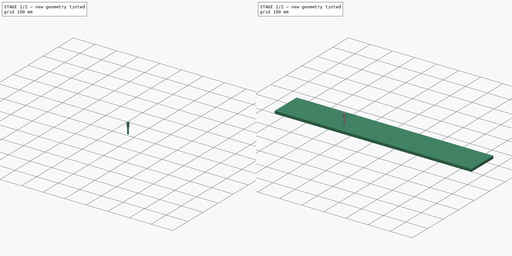
[diagram: build sequence overview — one tinted view per stage of 2, left to right]
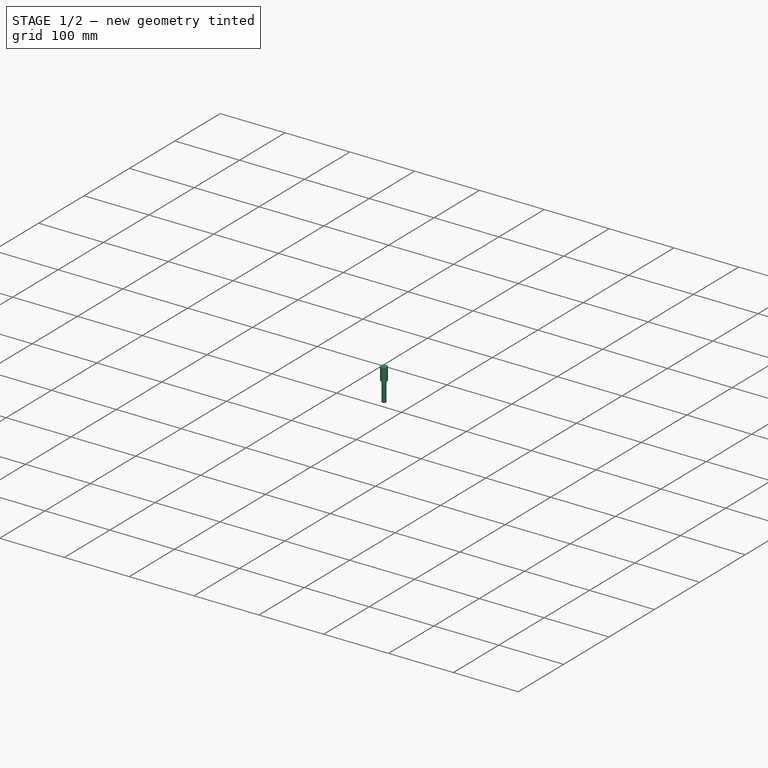
[diagram: stage 1 of 2 — iso view after this stage's code; geometry added in this stage tinted green]
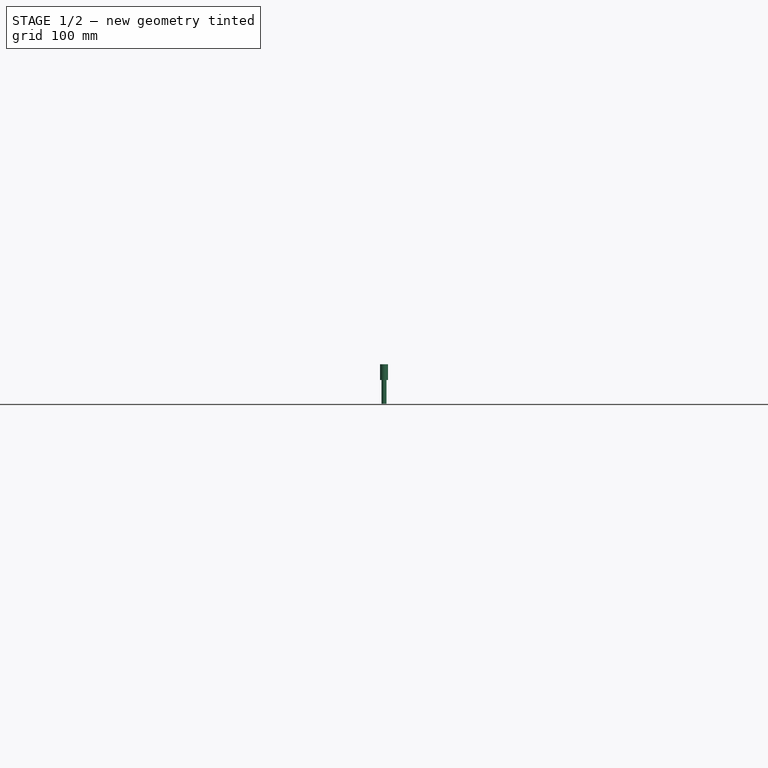
[diagram: stage 1 of 2 — front view after this stage's code; geometry added in this stage tinted green]
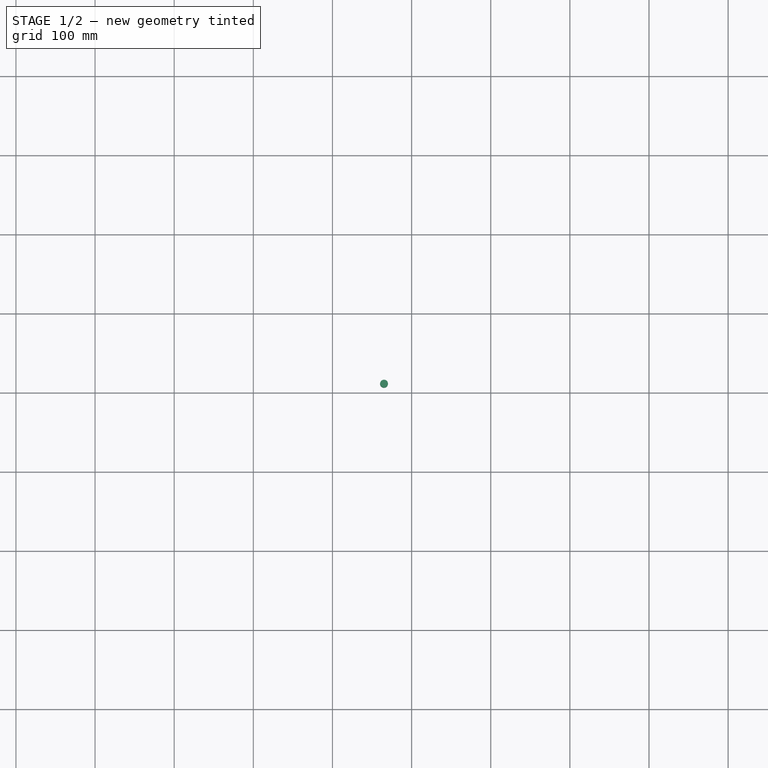
[diagram: stage 1 of 2 — top view after this stage's code; geometry added in this stage tinted green]
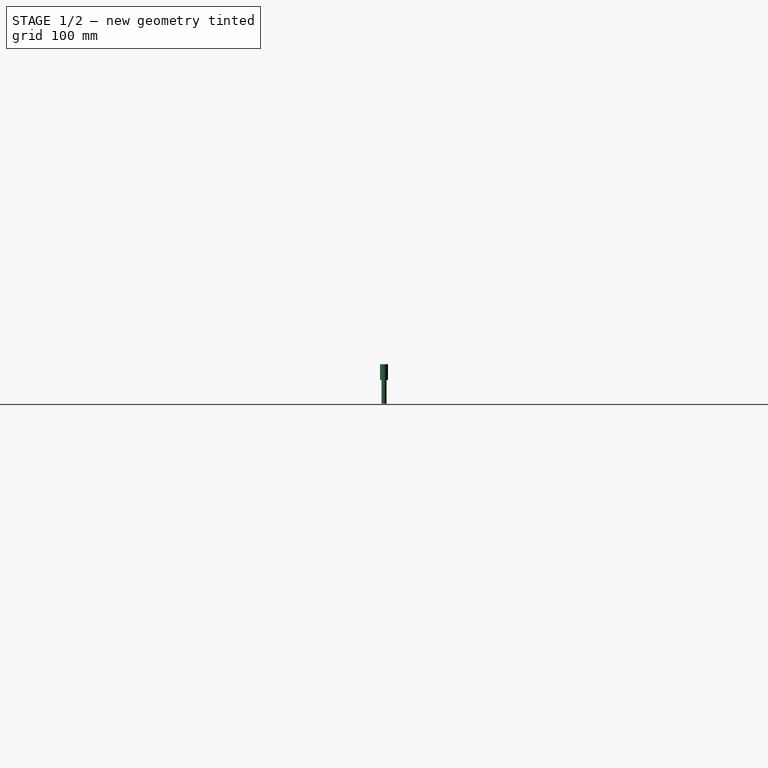
[diagram: stage 1 of 2 — right view after this stage's code; geometry added in this stage tinted green]
FCSTD DOCUMENT  (FreeCAD 0.19RUnknown)
Label: Signs1
License: All rights reserved
LicenseURL: http://en.wikipedia.org/wiki/All_rights_reserved
objects: Sketcher::SketchObject×1, Spreadsheet::Sheet×1, PartDesign::Pad×1, PartDesign::Body×1, Part::Part2DObjectPython×1, Part::FeaturePython×1
note: 6 computed .brp shape members not serialized (recipe doc carries the construction recipe); baked Part::Feature solids carry a one-line shape summary decoded from their .brp

FEATURE [PartDesign::Body] Body  label="Rectangle"
  Group = -> [Sketch,Pad]
  Origin = -> Origin
  Tip = -> Pad
FEATURE [Part::Part2DObjectPython] ShapeString  # Draft 2D object (typed FeaturePython)
  FontFile = <userpath>/MensShed/CNCRouter/fonts/cantarell/Cantarell-Light.otf
  Placement = pos=(100,100,0) rot=(0,0,1;0rad)
  Size = 48
  String = The Men's Shed
  Tracking = 0
FEATURE [Part::FeaturePython] CutTool  # WARN: FeaturePython — macro-defined, semantics opaque (R4)
  Placement = pos=(365.126,111.09,5) rot=(0,0,1;0rad)
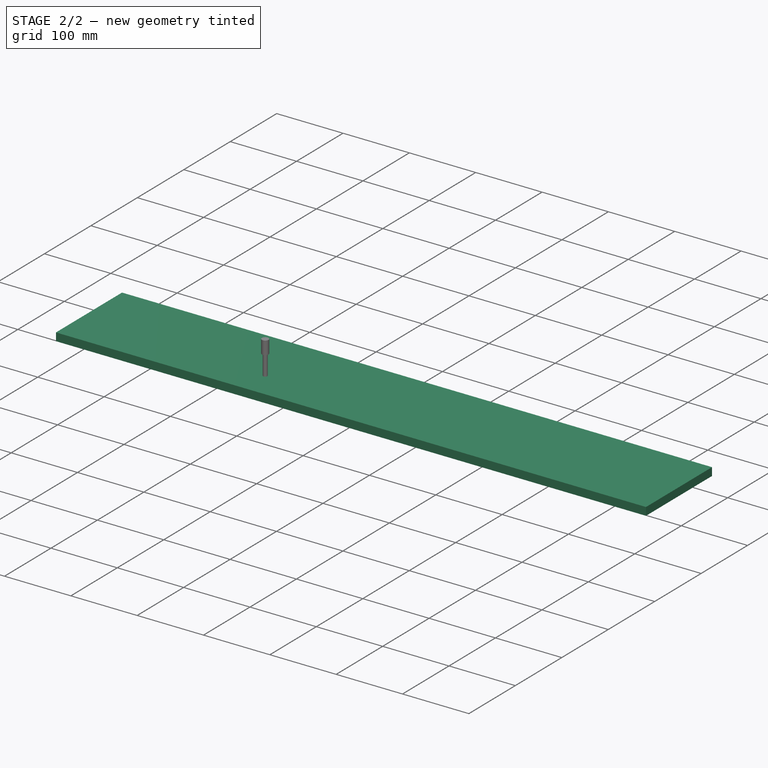
[diagram: stage 2 of 2 — iso view after this stage's code; geometry added in this stage tinted green]
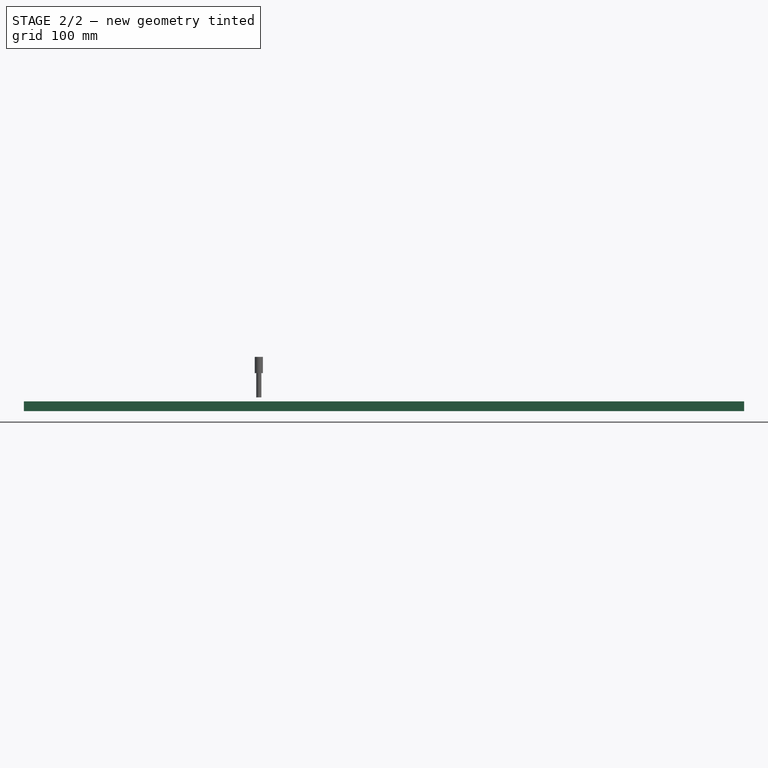
[diagram: stage 2 of 2 — front view after this stage's code; geometry added in this stage tinted green]
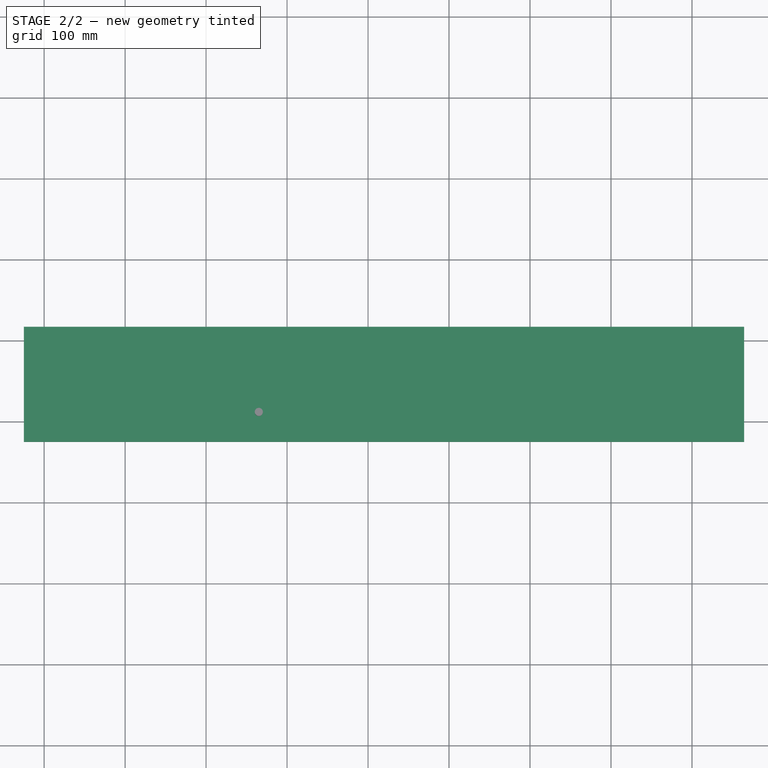
[diagram: stage 2 of 2 — top view after this stage's code; geometry added in this stage tinted green]
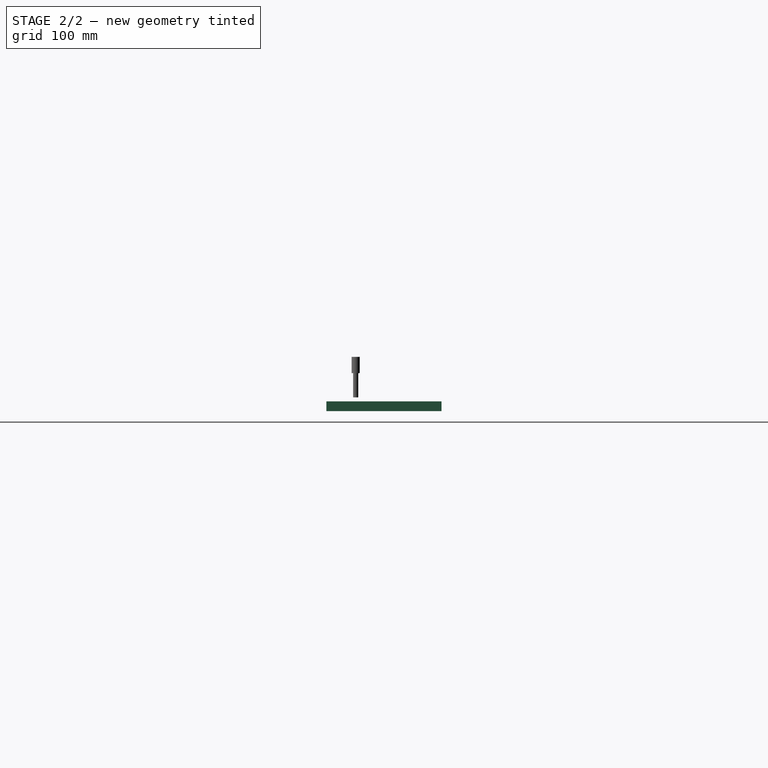
[diagram: stage 2 of 2 — right view after this stage's code; geometry added in this stage tinted green]
FEATURE [Sketcher::SketchObject] Sketch
  FullyConstrained = true
  MapMode = 5
  Support = -> [XY_Plane]
  expr: Constraints[11] = <<SignSizes>>.XOffset
  expr: Constraints[10] = <<SignSizes>>.YOffset
  expr: Constraints[9] = <<SignSizes>>.Width
  expr: Constraints[8] = <<SignSizes>>.Length
  sketch-geometry (4):
    g0: LineSegment StartX=75 StartY=217.16 StartZ=0 EndX=964.4 EndY=217.16 EndZ=0
    g1: LineSegment StartX=964.4 StartY=217.16 StartZ=0 EndX=964.4 EndY=75 EndZ=0
    g2: LineSegment StartX=964.4 StartY=75 StartZ=0 EndX=75 EndY=75 EndZ=0
    g3: LineSegment StartX=75 StartY=75 StartZ=0 EndX=75 EndY=217.16 EndZ=0
  constraints (12):
    c: Coincident(g0,g1)
    c: Coincident(g1,g2)
    c: Coincident(g2,g3)
    c: Coincident(g3,g0)
    c: Horizontal(g0)
    c: Horizontal(g2)
    c: Vertical(g1)
    c: Vertical(g3)
    c: DistanceX(g2,g1) = 889.4
    c: DistanceY(g2,g0) = 142.16
    c: DistanceY(g-1,g2) = 75
    c: DistanceX(g-1,g2) = 75
FEATURE [Spreadsheet::Sheet] Spreadsheet  label="SignSizes"
  cells = A1=Sign Length; B1(Length)==B9 + 50; A2=Sign Width; B2(Width)==B10 + 50; A3=Sign Thickness; B3(Thickness)=12; A4=X Offset; B4(XOffset)==B12 - B14; C4=10; A5=Y Offset; B5(YOffset)==B13 - B14; A7=Text Information Read from Shapestring; A8=String; B8==<<ShapeString>>.String; A9=Text Length; B9==<<ShapeString>>.Shape.BoundBox.XLength; A10=Text Width; B10==<<ShapeString>>.Shape.BoundBox.YLength; A11=Font Size; B11==<<ShapeString>>.Size; A12=Text X Location; B12==<<ShapeString>>.Placement.Base.x; A13=Text X Location; B13==<<ShapeString>>.Placement.Base.y; A14=Margin; B14==25mm; A15=Text Depth; B15(TextDepth)=-5
FEATURE [PartDesign::Pad] Pad
  Direction = (1,1,1)
  Length = 12
  Length2 = 100
  Profile = -> Sketch
  Reversed = true
  Type = 0
  expr: Length = <<SignSizes>>.Thickness
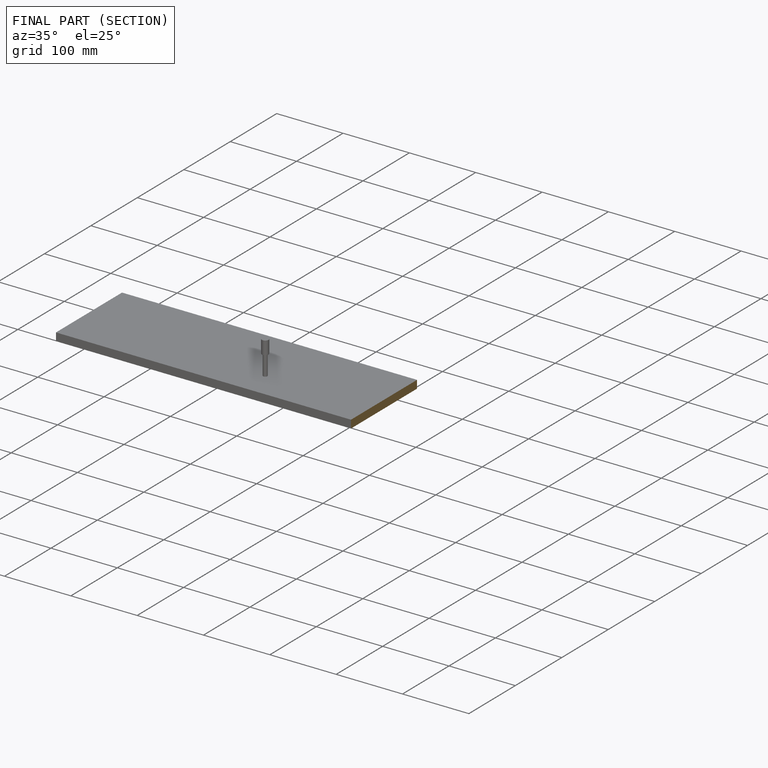
[diagram: finished part — half-section view (interior)]
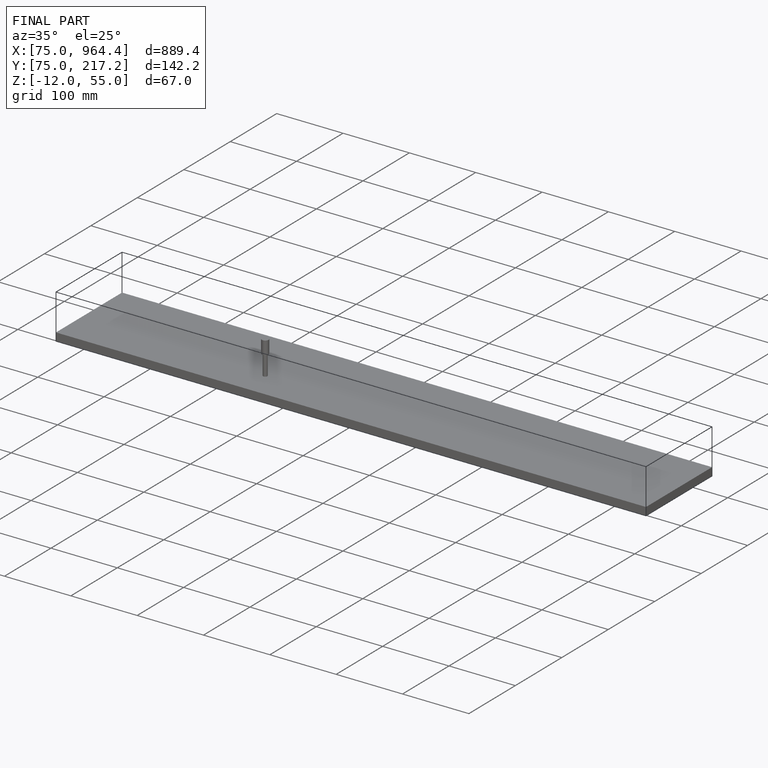
[diagram: finished part — iso view with bounding-box wireframe]
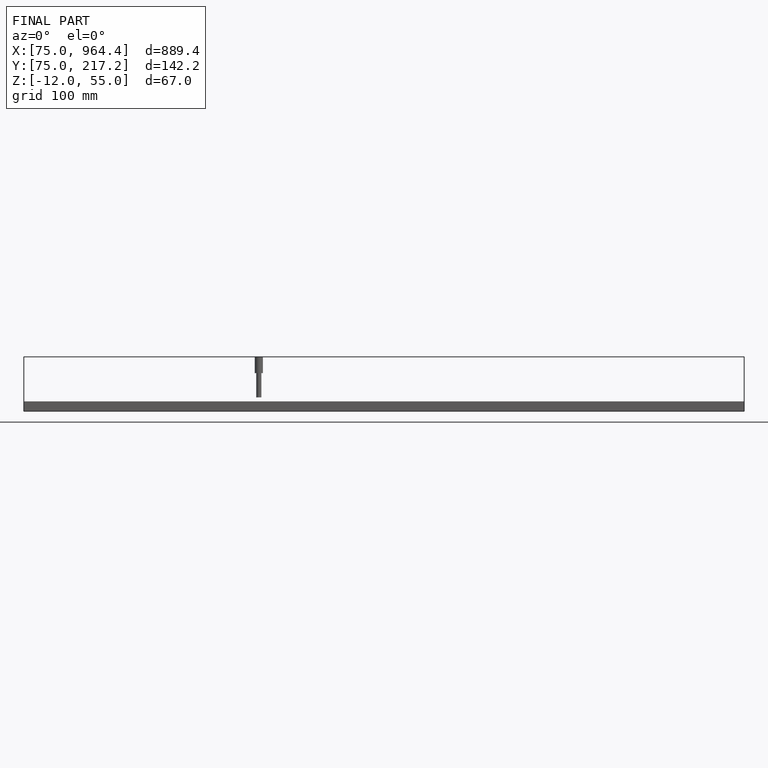
[diagram: finished part — front view with bounding-box wireframe]
